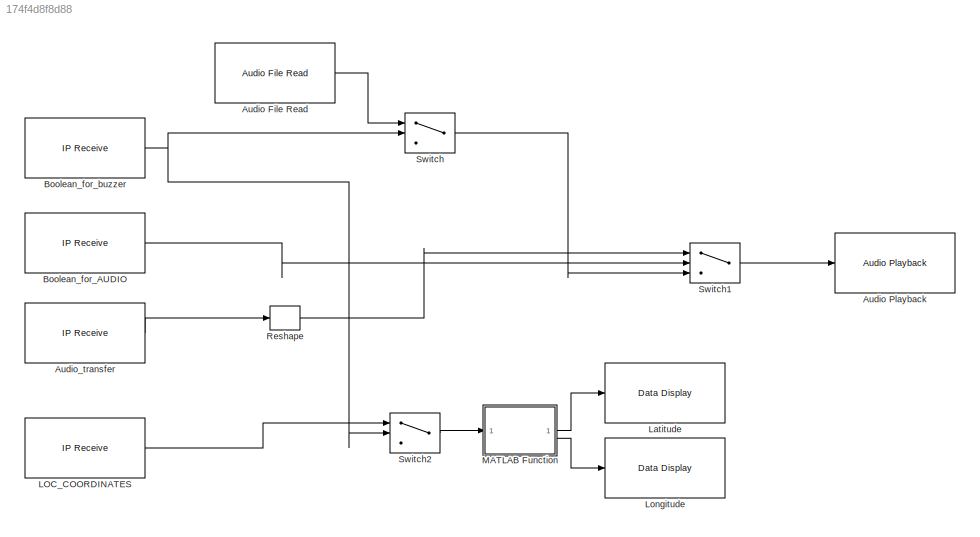
MODEL slx_174f4d8f8d88
KIND model
CONFIG AbsTol = auto
CONFIG EnableMultiTasking = off
CONFIG FixedStep = auto
CONFIG MaxStep = auto
CONFIG MinStep = auto
CONFIG RelTol = 1e-3
CONFIG SampleTimeConstraint = Unconstrained
CONFIG SolverName = VariableStepAuto
CONFIG StartTime = 0.0
CONFIG StopTime = 10.0
BLOCK [Reference] Audio File Read  REF=androidaudiovideolib/Audio File Read
  SourceBlock = androidaudiovideolib/Audio File Read
  SourceType = codertarget.internal.androidAudioFileRead
BLOCK [Reference] Audio Playback  REF=androidaudiovideolib/Audio Playback
  SourceBlock = androidaudiovideolib/Audio Playback
  SourceType = codertarget.internal.androidAudioPlayback
BLOCK [Reference] Audio_transfer  REF=androidcommunicationlib/TCP//IP Receive
  SourceBlock = androidcommunicationlib/TCP//IP Receive
  SourceType = codertarget.internal.androidTCPReceive
BLOCK [Reference] Boolean_for_AUDIO  REF=androidcommunicationlib/TCP//IP Receive
  SourceBlock = androidcommunicationlib/TCP//IP Receive
  SourceType = codertarget.internal.androidTCPReceive
BLOCK [Reference] Boolean_for_buzzer  REF=androidcommunicationlib/TCP//IP Receive
  SourceBlock = androidcommunicationlib/TCP//IP Receive
  SourceType = codertarget.internal.androidTCPReceive
BLOCK [Reference] LOC_COORDINATES  REF=androidcommunicationlib/TCP//IP Receive
  SourceBlock = androidcommunicationlib/TCP//IP Receive
  SourceType = codertarget.internal.androidTCPReceive
BLOCK [Reference] Latitude  REF=androiduilib/Data Display
  SourceBlock = androiduilib/Data Display
  SourceType = codertarget.internal.androidDataDisplay
BLOCK [Reference] Longitude  REF=androiduilib/Data Display
  SourceBlock = androiduilib/Data Display
  SourceType = codertarget.internal.androidDataDisplay
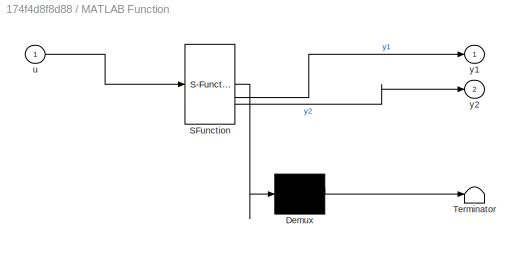
BLOCK [SubSystem] MATLAB Function
  ErrorFcn = Stateflow.Translate.translate
  LibrarySourceBlock = simulink/User-Defined\nFunctions/MATLAB Function
  PermitHierarchicalResolution = ExplicitOnly
  SFBlockType = MATLAB Function
  TreatAsAtomicUnit = on
BLOCK [Demux] MATLAB Function/ Demux 
  Outputs = 1
BLOCK [S-Function] MATLAB Function/ SFunction 
  EnableBusSupport = off
  FunctionName = sf_sfun
  PortCounts = [1 3]
  SFcnIsStateOwnerBlock = off
  SFunctionDeploymentMode = off
  Tag = Stateflow S-Function 2
BLOCK [Terminator] MATLAB Function/ Terminator 
BLOCK [Inport] MATLAB Function/u
BLOCK [Outport] MATLAB Function/y1
BLOCK [Outport] MATLAB Function/y2
  Port = 2
BLOCK [Reshape] Reshape
  OutputDimensionality = Customize
  OutputDimensions = [4410,2]
BLOCK [Switch] Switch
  Criteria = u2 > Threshold
  InputSameDT = off
  SaturateOnIntegerOverflow = off
BLOCK [Switch] Switch1
  Criteria = u2 > Threshold
  InputSameDT = off
  SaturateOnIntegerOverflow = off
BLOCK [Switch] Switch2
  Criteria = u2 > Threshold
  InputSameDT = off
  SaturateOnIntegerOverflow = off
LINE Audio File Read:1 -> Switch:1
LINE Audio_transfer:1 -> Reshape:1
LINE Boolean_for_AUDIO:1 -> Switch1:2
NET Boolean_for_buzzer:1 -> Switch2:2, Switch:2
LINE LOC_COORDINATES:1 -> Switch2:1
LINE MATLAB Function:1 -> Latitude:1
LINE MATLAB Function:2 -> Longitude:1
LINE Reshape:1 -> Switch1:1
LINE Switch1:1 -> Audio Playback:1
LINE Switch2:1 -> MATLAB Function:1
LINE Switch:1 -> Switch1:3
note: NET lines group one-source signal fan-out (src -> all destinations, sorted); 1:1 wires keep LINE
CHART MATLAB Function states=1 transitions=1
  STATE_LABEL 'eML_blk_kernel()'
  STATE_LABEL 'SCRIPT:\nfunction [y1,y2] = fcn(u)\ny1=u(1);\ny2=u(2);\ny = u;\n'
CHART  states=0 transitions=0
